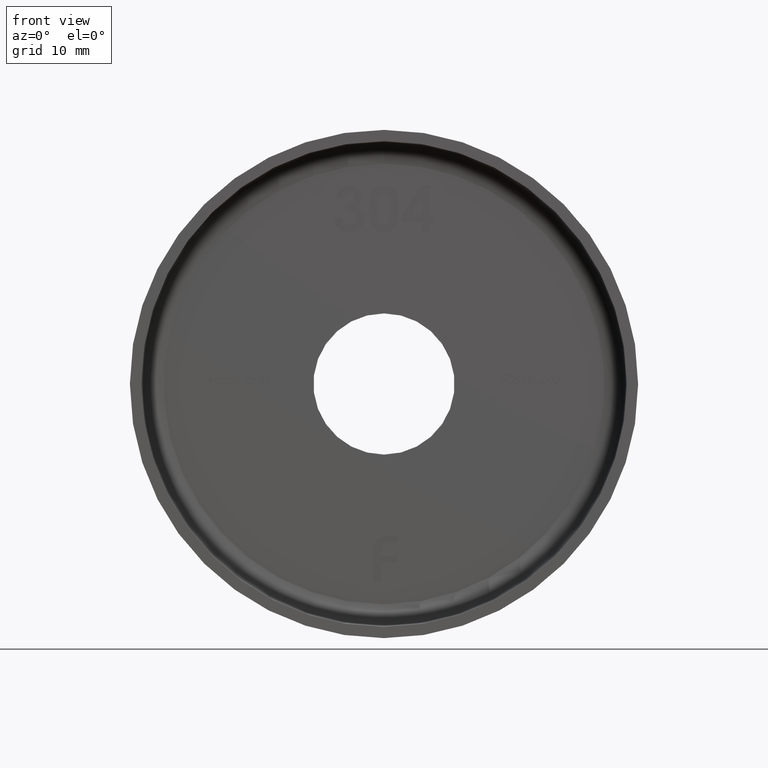
[diagram: clean part render]
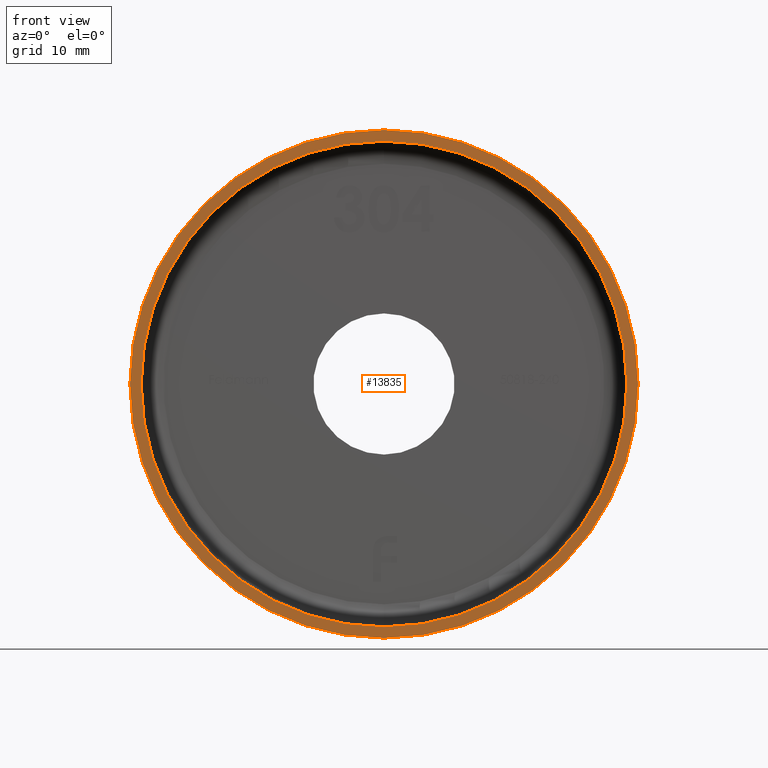
[diagram: same view with one face highlighted and labeled with its STEP entity id]
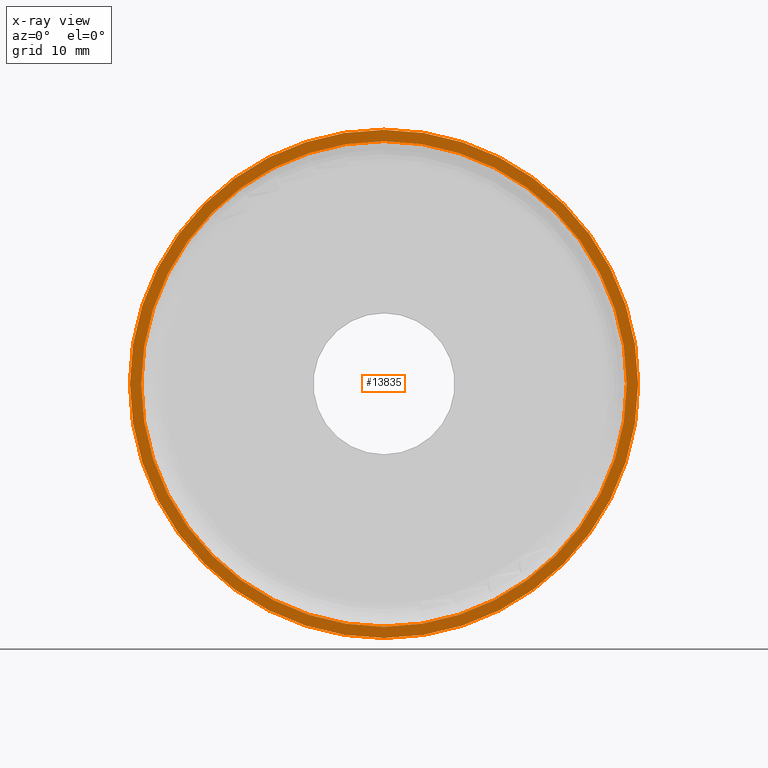
[diagram: x-ray of the same camera — body ghosted, the highlighted face saturated]
A machine part, front view. The second image highlights one B-rep face of the part: STEP entity #13835.
The next image is the same camera in x-ray: the body ghosted, the highlighted face saturated — about 0% of this face is hidden behind the body in this view.
In plain terms, the highlighted planar face has unit normal (0, -1, -0).
Its self-contained STEP definition (entity closure, byte-faithful):
#1 = CARTESIAN_POINT ( 'NONE',  ( 0.000000000000000000, -1.224646799147353207E-16, 0.000000000000000000 ) ) ;
#355 = AXIS2_PLACEMENT_3D ( 'NONE', #14701, #15950, #12122 ) ;
#476 = VERTEX_POINT ( 'NONE', #17009 ) ;
#544 = ORIENTED_EDGE ( 'NONE', *, *, #8207, .T. ) ;
#1207 = ORIENTED_EDGE ( 'NONE', *, *, #7882, .F. ) ;
#1670 = VERTEX_POINT ( 'NONE', #10815 ) ;
#2820 = CARTESIAN_POINT ( 'NONE',  ( 0.000000000000000000, -1.224646799147353207E-16, -21.50000000000000355 ) ) ;
#3259 = CARTESIAN_POINT ( 'NONE',  ( 21.50000000000000355, -6.123233995736766036E-17, 0.000000000000000000 ) ) ;
#3813 = CARTESIAN_POINT ( 'NONE',  ( 0.000000000000000000, 0.000000000000000000, 0.000000000000000000 ) ) ;
#3902 = CARTESIAN_POINT ( 'NONE',  ( 0.000000000000000000, 0.000000000000000000, -22.50000000000000711 ) ) ;
#3930 = VERTEX_POINT ( 'NONE', #2820 ) ;
#4115 = DIRECTION ( 'NONE',  ( -0.000000000000000000, -1.000000000000000000, -0.000000000000000000 ) ) ;
#4394 = EDGE_LOOP ( 'NONE', ( #13514, #544 ) ) ;
#4410 = AXIS2_PLACEMENT_3D ( 'NONE', #3813, #7978, #9064 ) ;
#4879 = VERTEX_POINT ( 'NONE', #3902 ) ;
#5091 = AXIS2_PLACEMENT_3D ( 'NONE', #15450, #8851, #12811 ) ;
#5433 = CIRCLE ( 'NONE', #5091, 22.50000000000000711 ) ;
#5868 = AXIS2_PLACEMENT_3D ( 'NONE', #1, #4115, #8050 ) ;
#6178 = DIRECTION ( 'NONE',  ( 0.000000000000000000, -1.000000000000000000, -0.000000000000000000 ) ) ;
#7442 = PLANE ( 'NONE',  #15067 ) ;
#7882 = EDGE_CURVE ( 'NONE', #3930, #476, #8814, .T. ) ;
#7978 = DIRECTION ( 'NONE',  ( -0.000000000000000000, -1.000000000000000000, -0.000000000000000000 ) ) ;
#7990 = CIRCLE ( 'NONE', #4410, 22.50000000000000711 ) ;
#8050 = DIRECTION ( 'NONE',  ( 0.000000000000000000, 0.000000000000000000, -1.000000000000000000 ) ) ;
#8186 = ORIENTED_EDGE ( 'NONE', *, *, #16416, .F. ) ;
#8207 = EDGE_CURVE ( 'NONE', #1670, #4879, #7990, .T. ) ;
#8814 = CIRCLE ( 'NONE', #5868, 21.50000000000000355 ) ;
#8851 = DIRECTION ( 'NONE',  ( -0.000000000000000000, -1.000000000000000000, -0.000000000000000000 ) ) ;
#9064 = DIRECTION ( 'NONE',  ( 0.000000000000000000, 0.000000000000000000, -1.000000000000000000 ) ) ;
#9764 = EDGE_LOOP ( 'NONE', ( #1207, #8186 ) ) ;
#10140 = FACE_BOUND ( 'NONE', #9764, .T. ) ;
#10815 = CARTESIAN_POINT ( 'NONE',  ( 2.755455298081545961E-15, 0.000000000000000000, 22.50000000000000711 ) ) ;
#12122 = DIRECTION ( 'NONE',  ( 0.000000000000000000, 0.000000000000000000, -1.000000000000000000 ) ) ;
#12811 = DIRECTION ( 'NONE',  ( 0.000000000000000000, 0.000000000000000000, -1.000000000000000000 ) ) ;
#12835 = EDGE_CURVE ( 'NONE', #4879, #1670, #5433, .T. ) ;
#13514 = ORIENTED_EDGE ( 'NONE', *, *, #12835, .T. ) ;
#13675 = FACE_OUTER_BOUND ( 'NONE', #4394, .T. ) ;
#13835 = ADVANCED_FACE ( 'NONE', ( #13675, #10140 ), #7442, .T. ) ;
#13968 = DIRECTION ( 'NONE',  ( 0.000000000000000000, 0.000000000000000000, -1.000000000000000000 ) ) ;
#14701 = CARTESIAN_POINT ( 'NONE',  ( 0.000000000000000000, -1.224646799147353207E-16, 0.000000000000000000 ) ) ;
#15067 = AXIS2_PLACEMENT_3D ( 'NONE', #3259, #6178, #13968 ) ;
#15450 = CARTESIAN_POINT ( 'NONE',  ( 0.000000000000000000, 0.000000000000000000, 0.000000000000000000 ) ) ;
#15950 = DIRECTION ( 'NONE',  ( -0.000000000000000000, -1.000000000000000000, -0.000000000000000000 ) ) ;
#16087 = CIRCLE ( 'NONE', #355, 21.50000000000000355 ) ;
#16416 = EDGE_CURVE ( 'NONE', #476, #3930, #16087, .T. ) ;
#17009 = CARTESIAN_POINT ( 'NONE',  ( 2.632990618166810024E-15, -1.224646799147353207E-16, 21.50000000000000355 ) ) ;